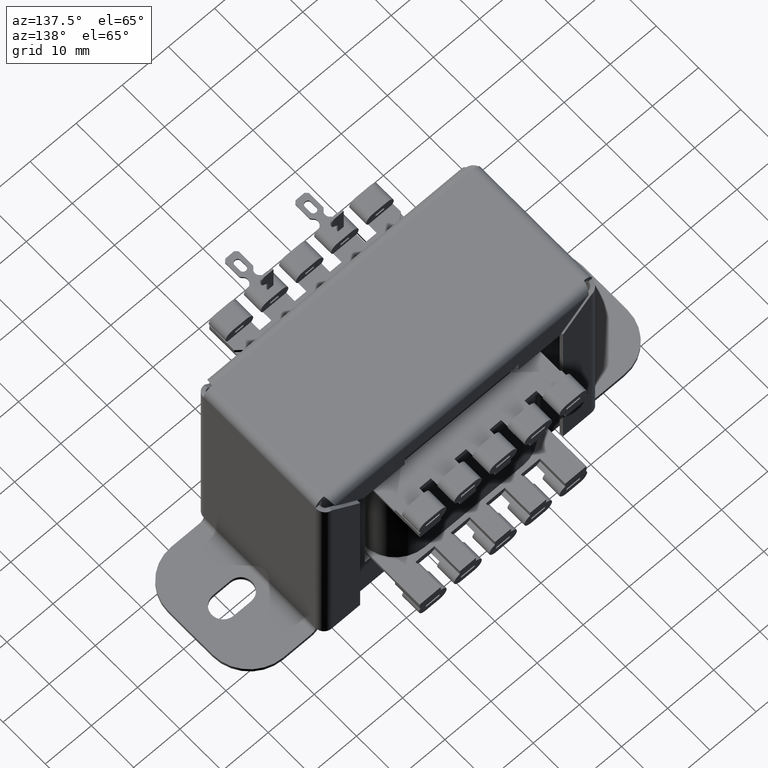
[diagram: clean part render]
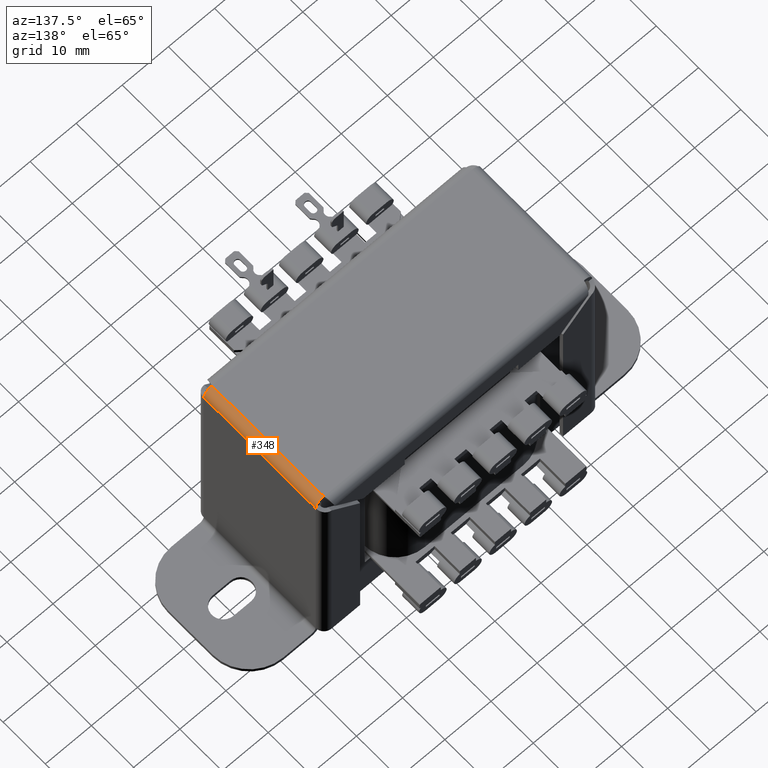
[diagram: same view with one face highlighted and labeled with its STEP entity id]
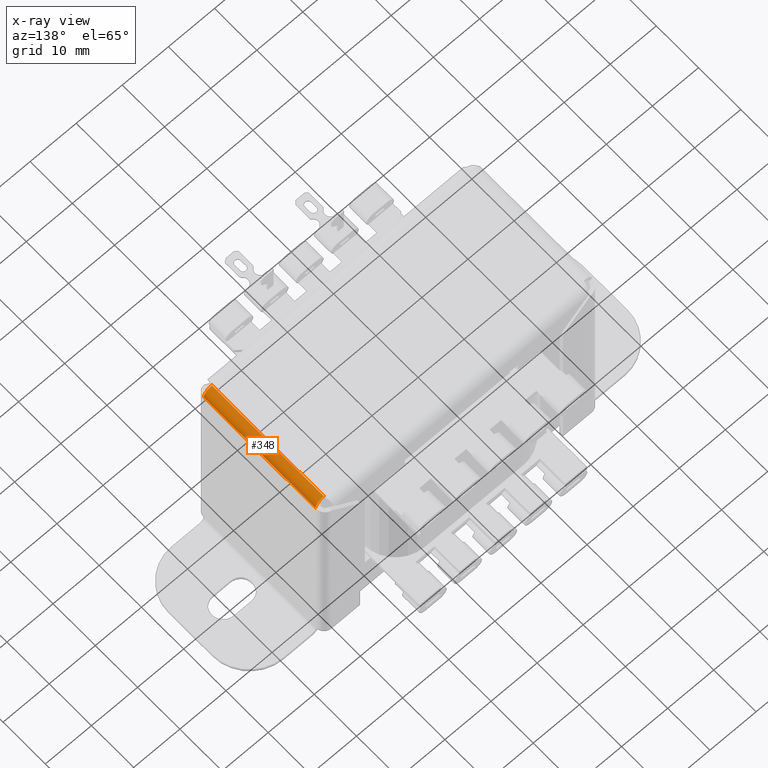
[diagram: x-ray of the same camera — body ghosted, the highlighted face saturated]
A machine part, auxiliary view. The second image highlights one B-rep face of the part: STEP entity #348.
The next image is the same camera in x-ray: the body ghosted, the highlighted face saturated — about 0% of this face is hidden behind the body in this view.
In plain terms, the highlighted cylindrical surface (edge-blend (fillet) strip) has radius 1.8 mm, axis along (0, -1, -0).
Its self-contained STEP definition (entity closure, byte-faithful):
#348 = ADVANCED_FACE ( 'NONE', ( #15154 ), #6641, .T. ) ;
#631 = CARTESIAN_POINT ( 'NONE',  ( 28.19999999999999574, 0.9999999999999986677, 13.24999999999999822 ) ) ;
#1218 = CARTESIAN_POINT ( 'NONE',  ( 28.19999999999999574, -0.8000000000000020428, 13.24999999999999822 ) ) ;
#1530 = CARTESIAN_POINT ( 'NONE',  ( 28.19999999999999574, 0.9999999999999986677, 13.24999999999999822 ) ) ;
#2144 = DIRECTION ( 'NONE',  ( -1.309225264888156377E-16, 8.758115402030106693E-47, -1.000000000000000000 ) ) ;
#3055 = DIRECTION ( 'NONE',  ( -0.000000000000000000, -0.000000000000000000, -1.000000000000000000 ) ) ;
#4322 = DIRECTION ( 'NONE',  ( 1.000000000000000000, -8.854317741964954981E-15, 0.000000000000000000 ) ) ;
#4589 = AXIS2_PLACEMENT_3D ( 'NONE', #15577, #3055, #4322 ) ;
#4916 = ORIENTED_EDGE ( 'NONE', *, *, #5544, .T. ) ;
#5544 = EDGE_CURVE ( 'NONE', #14084, #10929, #9110, .T. ) ;
#5629 = VERTEX_POINT ( 'NONE', #13046 ) ;
#6641 = CYLINDRICAL_SURFACE ( 'NONE', #11292, 1.799999999999999600 ) ;
#6888 = EDGE_CURVE ( 'NONE', #5629, #10929, #8400, .T. ) ;
#7906 = ORIENTED_EDGE ( 'NONE', *, *, #13869, .F. ) ;
#8108 = CARTESIAN_POINT ( 'NONE',  ( 28.19999999999999574, -0.8000000000000020428, 13.24999999999999822 ) ) ;
#8400 = CIRCLE ( 'NONE', #4589, 1.799999999999999600 ) ;
#9097 = ORIENTED_EDGE ( 'NONE', *, *, #11599, .F. ) ;
#9110 = LINE ( 'NONE', #14695, #12442 ) ;
#10929 = VERTEX_POINT ( 'NONE', #17295 ) ;
#11292 = AXIS2_PLACEMENT_3D ( 'NONE', #8108, #16159, #12226 ) ;
#11299 = VERTEX_POINT ( 'NONE', #631 ) ;
#11599 = EDGE_CURVE ( 'NONE', #11299, #5629, #15340, .T. ) ;
#11814 = CARTESIAN_POINT ( 'NONE',  ( 29.99999999999999289, -0.7999999999999999334, 13.25000000000000000 ) ) ;
#12226 = DIRECTION ( 'NONE',  ( 1.000000000000000000, 3.433306879537431628E-15, 0.000000000000000000 ) ) ;
#12383 = DIRECTION ( 'NONE',  ( 0.000000000000000000, 0.000000000000000000, 1.000000000000000000 ) ) ;
#12442 = VECTOR ( 'NONE', #2144, 1000.000000000000000 ) ;
#13046 = CARTESIAN_POINT ( 'NONE',  ( 28.19999999999998863, 0.9999999999999950040, -13.25000000000000178 ) ) ;
#13412 = DIRECTION ( 'NONE',  ( 1.000000000000000000, 0.000000000000000000, 0.000000000000000000 ) ) ;
#13661 = EDGE_LOOP ( 'NONE', ( #9097, #7906, #4916, #14116 ) ) ;
#13717 = VECTOR ( 'NONE', #13884, 1000.000000000000000 ) ;
#13869 = EDGE_CURVE ( 'NONE', #14084, #11299, #16932, .T. ) ;
#13884 = DIRECTION ( 'NONE',  ( -0.000000000000000000, -0.000000000000000000, -1.000000000000000000 ) ) ;
#14084 = VERTEX_POINT ( 'NONE', #11814 ) ;
#14116 = ORIENTED_EDGE ( 'NONE', *, *, #6888, .F. ) ;
#14695 = CARTESIAN_POINT ( 'NONE',  ( 29.99999999999999645, -0.7999999999999959366, -13.25000000000000178 ) ) ;
#15154 = FACE_OUTER_BOUND ( 'NONE', #13661, .T. ) ;
#15340 = LINE ( 'NONE', #1530, #13717 ) ;
#15474 = AXIS2_PLACEMENT_3D ( 'NONE', #1218, #12383, #13412 ) ;
#15577 = CARTESIAN_POINT ( 'NONE',  ( 28.19999999999999574, -0.8000000000000020428, -13.25000000000000178 ) ) ;
#16159 = DIRECTION ( 'NONE',  ( 0.000000000000000000, 0.000000000000000000, 1.000000000000000000 ) ) ;
#16932 = CIRCLE ( 'NONE', #15474, 1.799999999999999600 ) ;
#17295 = CARTESIAN_POINT ( 'NONE',  ( 29.99999999999999645, -0.7999999999999958256, -13.25000000000000178 ) ) ;